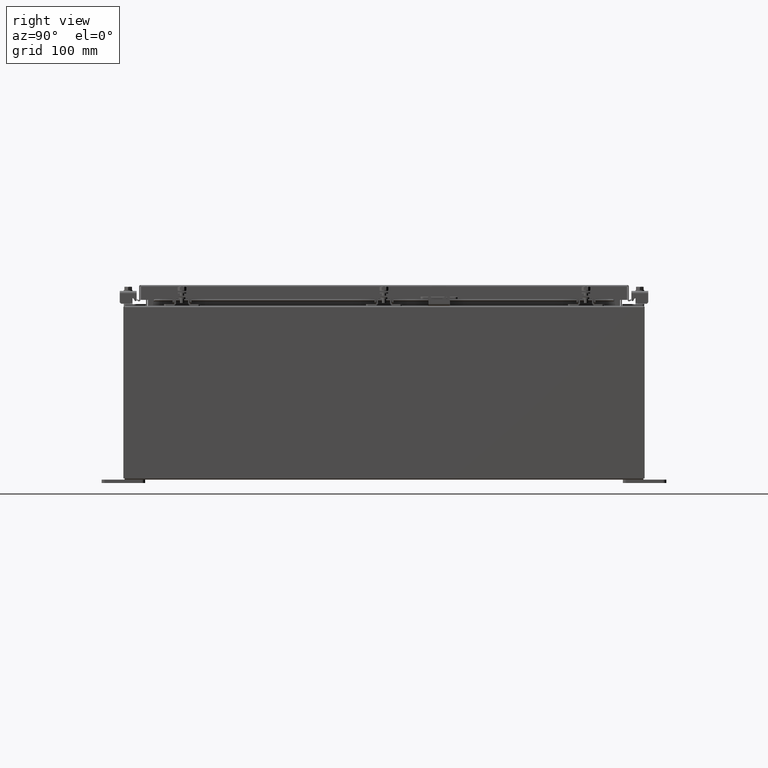
[diagram: clean part render]
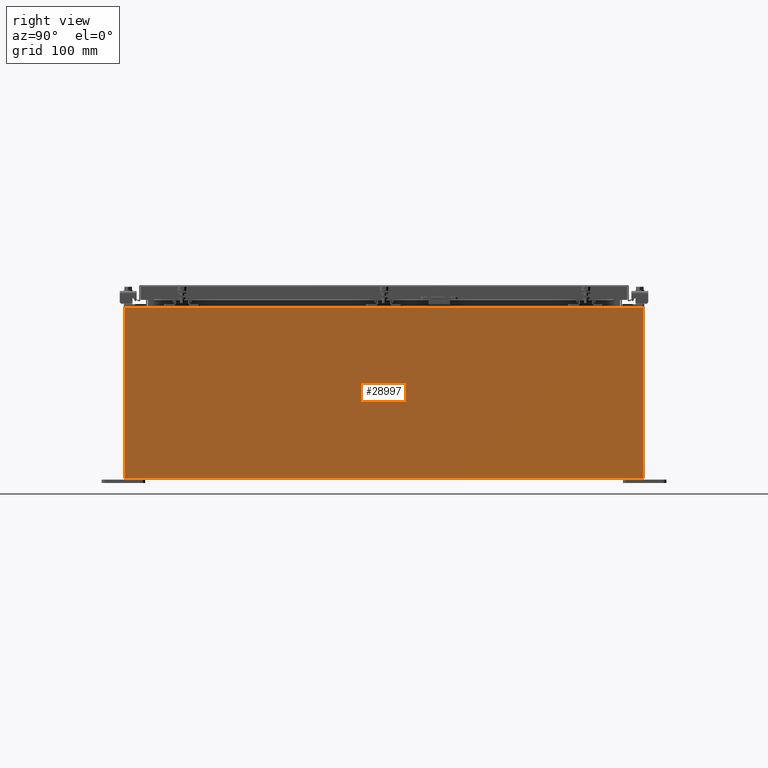
[diagram: same view with one face highlighted and labeled with its STEP entity id]
A machine part, right view. The second image highlights one B-rep face of the part: STEP entity #28997.
In plain terms, the highlighted planar face has unit normal (-1, 0, 0).
Its self-contained STEP definition (entity closure, byte-faithful):
#1422 = CARTESIAN_POINT ( 'NONE',  ( 11.99999999999999600, 14.92529999999999800, 0.01299999999999766100 ) ) ;
#2917 = LINE ( 'NONE', #27476, #32778 ) ;
#3833 = LINE ( 'NONE', #21675, #33656 ) ;
#4363 = DIRECTION ( 'NONE',  ( 3.523082860860888200E-015, -2.201926788038055100E-016, 1.000000000000000000 ) ) ;
#4889 = CARTESIAN_POINT ( 'NONE',  ( 11.99999999999999600, -14.92530000000000000, 0.01299999999999997500 ) ) ;
#5444 = ORIENTED_EDGE ( 'NONE', *, *, #13137, .F. ) ;
#5725 = EDGE_CURVE ( 'NONE', #32467, #34535, #12635, .T. ) ;
#9469 = EDGE_CURVE ( 'NONE', #31433, #32467, #23725, .T. ) ;
#9758 = DIRECTION ( 'NONE',  ( -3.523082860860888200E-015, -2.201926788038054900E-016, -1.000000000000000000 ) ) ;
#10140 = DIRECTION ( 'NONE',  ( 2.579385833438731400E-031, -1.000000000000000000, 7.321388497823869400E-017 ) ) ;
#11270 = FACE_OUTER_BOUND ( 'NONE', #28605, .T. ) ;
#11956 = CARTESIAN_POINT ( 'NONE',  ( 11.99999999999999600, 0.0000000000000000000, -4.253780798634221600E-014 ) ) ;
#12411 = CARTESIAN_POINT ( 'NONE',  ( 11.99999999999999600, -14.92530000000000000, -3.925136619739177700E-014 ) ) ;
#12635 = LINE ( 'NONE', #12411, #36607 ) ;
#13107 = EDGE_CURVE ( 'NONE', #31590, #31433, #3833, .T. ) ;
#13137 = EDGE_CURVE ( 'NONE', #31590, #34535, #2917, .T. ) ;
#14884 = DIRECTION ( 'NONE',  ( 3.523082860860887800E-015, 0.0000000000000000000, 1.000000000000000000 ) ) ;
#15796 = ORIENTED_EDGE ( 'NONE', *, *, #5725, .T. ) ;
#17433 = CARTESIAN_POINT ( 'NONE',  ( 12.00000000000003200, -14.92529999999999800, 9.837600000000001900 ) ) ;
#18002 = CARTESIAN_POINT ( 'NONE',  ( 12.00000000000003200, 14.92529999999999800, 9.837599999999994800 ) ) ;
#18943 = DIRECTION ( 'NONE',  ( -0.0000000000000000000, -1.000000000000000000, -0.0000000000000000000 ) ) ;
#21675 = CARTESIAN_POINT ( 'NONE',  ( 11.99999999999999600, 14.92530000000000000, -3.925136619739177700E-014 ) ) ;
#23725 = LINE ( 'NONE', #34628, #30415 ) ;
#26532 = ORIENTED_EDGE ( 'NONE', *, *, #9469, .T. ) ;
#27476 = CARTESIAN_POINT ( 'NONE',  ( 11.99999999999999600, -14.92529999999999800, 0.01299999999999984700 ) ) ;
#28605 = EDGE_LOOP ( 'NONE', ( #26532, #15796, #5444, #29678 ) ) ;
#28997 = ADVANCED_FACE ( 'NONE', ( #11270 ), #29267, .F. ) ;
#29267 = PLANE ( 'NONE',  #31306 ) ;
#29678 = ORIENTED_EDGE ( 'NONE', *, *, #13107, .T. ) ;
#30415 = VECTOR ( 'NONE', #18943, 39.37007874015748100 ) ;
#31306 = AXIS2_PLACEMENT_3D ( 'NONE', #11956, #32188, #14884 ) ;
#31433 = VERTEX_POINT ( 'NONE', #18002 ) ;
#31590 = VERTEX_POINT ( 'NONE', #1422 ) ;
#32188 = DIRECTION ( 'NONE',  ( -1.000000000000000000, 0.0000000000000000000, 3.523082860860887800E-015 ) ) ;
#32467 = VERTEX_POINT ( 'NONE', #17433 ) ;
#32778 = VECTOR ( 'NONE', #10140, 39.37007874015748100 ) ;
#33656 = VECTOR ( 'NONE', #4363, 39.37007874015748100 ) ;
#34535 = VERTEX_POINT ( 'NONE', #4889 ) ;
#34628 = CARTESIAN_POINT ( 'NONE',  ( 12.00000000000003200, 14.92529999999999800, 9.837599999999994800 ) ) ;
#36607 = VECTOR ( 'NONE', #9758, 39.37007874015748100 ) ;